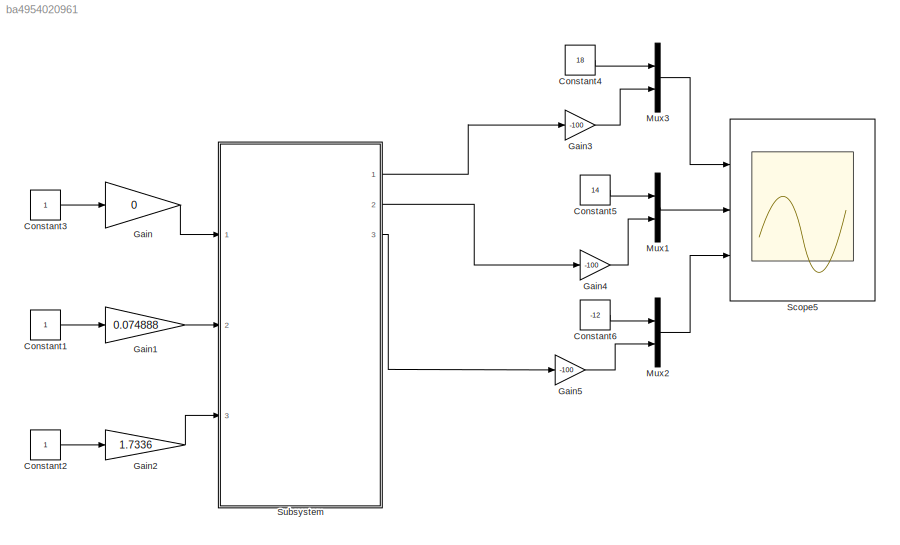
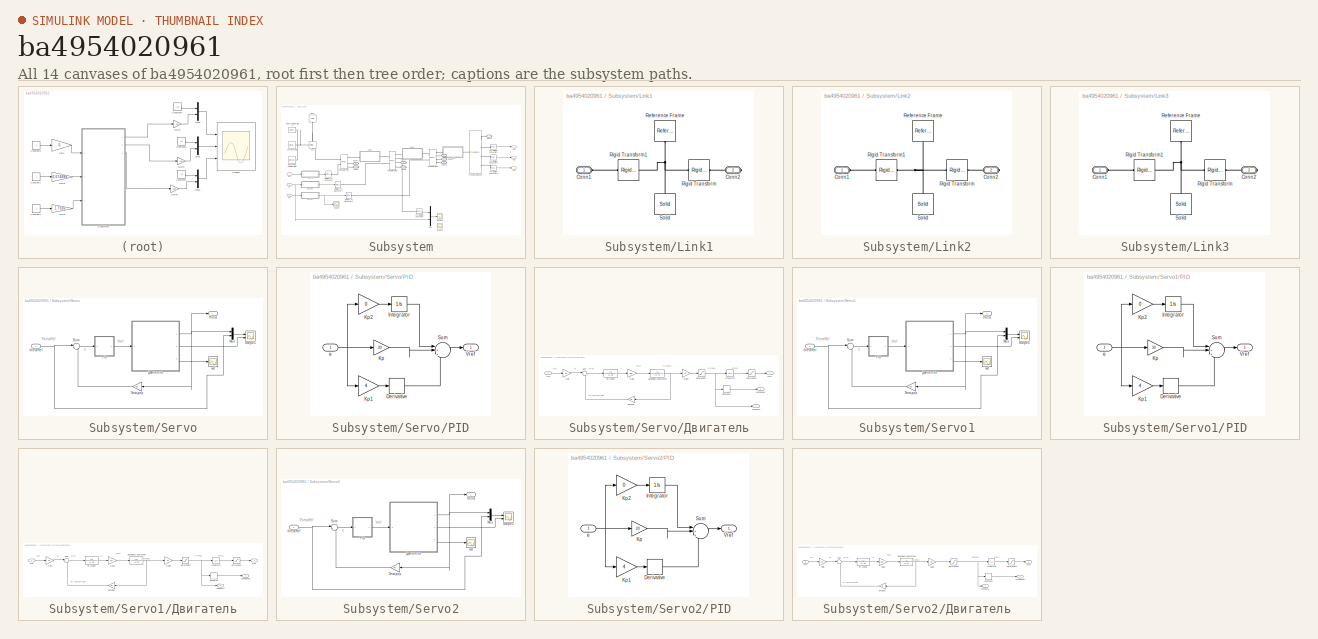
[diagram: thumbnail index - all 14 canvases of the model, root first then tree order]
MODEL slx_ba4954020961
KIND model
CONFIG AbsTol = auto
CONFIG FixedStep = 0.0006
CONFIG MaxStep = auto
CONFIG MinStep = auto
CONFIG RelTol = 1e-3
CONFIG SampleTimeConstraint = Unconstrained
CONFIG Solver = ode14x
CONFIG SolverMode = Auto
CONFIG SolverName = ode14x
CONFIG StartTime = 0.0
CONFIG StopTime = inf
BLOCK [Constant] Constant1
BLOCK [Constant] Constant2
BLOCK [Constant] Constant3
BLOCK [Constant] Constant4
  Value = 18
BLOCK [Constant] Constant5
  Value = 14
BLOCK [Constant] Constant6
  Value = -12
BLOCK [Gain] Gain
  Gain = 0
  OutDataTypeStr = Inherit: Inherit via internal rule
  ParamDataTypeStr = Inherit: Inherit via internal rule
  SaturateOnIntegerOverflow = off
BLOCK [Gain] Gain1
  Gain = 0.074888
  OutDataTypeStr = Inherit: Inherit via internal rule
  ParamDataTypeStr = Inherit: Inherit via internal rule
  SaturateOnIntegerOverflow = off
BLOCK [Gain] Gain2
  Gain = 1.7336
  OutDataTypeStr = Inherit: Inherit via internal rule
  ParamDataTypeStr = Inherit: Inherit via internal rule
  SaturateOnIntegerOverflow = off
BLOCK [Gain] Gain3
  Gain = -100
  OutDataTypeStr = Inherit: Inherit via internal rule
  ParamDataTypeStr = Inherit: Inherit via internal rule
  SaturateOnIntegerOverflow = off
BLOCK [Gain] Gain4
  Gain = -100
  OutDataTypeStr = Inherit: Inherit via internal rule
  ParamDataTypeStr = Inherit: Inherit via internal rule
  SaturateOnIntegerOverflow = off
BLOCK [Gain] Gain5
  Gain = -100
  OutDataTypeStr = Inherit: Inherit via internal rule
  ParamDataTypeStr = Inherit: Inherit via internal rule
  SaturateOnIntegerOverflow = off
BLOCK [Mux] Mux1
  DisplayOption = bar
  Inputs = 2
  Ports = [2, 1]
BLOCK [Mux] Mux2
  DisplayOption = bar
  Inputs = 2
  Ports = [2, 1]
BLOCK [Mux] Mux3
  DisplayOption = bar
  Inputs = 2
  Ports = [2, 1]
BLOCK [Scope] Scope5
  Floating = off
  LimitDataPoints = off
  NumInputPorts = 3
  Ports = [3]
  SaveName = ScopeData4
  YMax = 28~25~12.5
  YMin = 14~14~-12.5
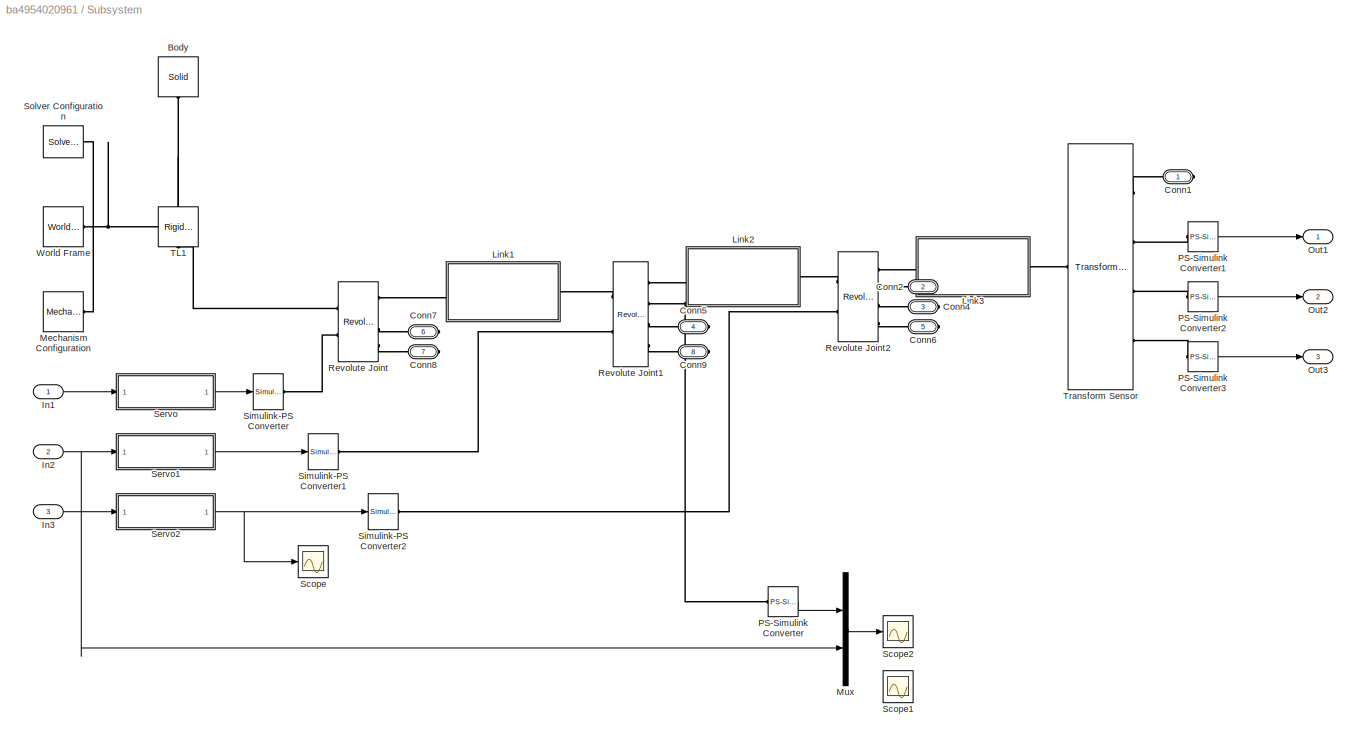
BLOCK [SubSystem] Subsystem
  Ports = [3, 3, 0, 0, 0, 0, 8]
  RequestExecContextInheritance = off
BLOCK [Reference] Subsystem/Body  REF=sm_lib/Body Elements/Solid
  BlockFunction = simmechanics.library.body_elements.solid
  BrickDimensionUnits = cm
  BrickDimensions = [18.5 12.5 1]
  CenterOfMass = [0 0 0]
  CenterOfMassUnits = m
  ClassName = Solid
  CylinderLength = 1
  CylinderLengthUnits = m
  CylinderRadius = 1
  CylinderRadiusUnits = m
  Density = 5000
  DensityBased = off
  DensityUnits = kg/(m^3)
  EllipsoidRadii = [1 1 1]
  EllipsoidRadiiUnits = m
  ExtGeomFileName = <path>
  ExtGeomFileType = STEP
  ExtGeomFileUnits = m
  ExtrusionCrossSection = [bL/2 bWs/2; 0 bWb/2; -bL/2 bWs/2; -bL/2 -bWs/2; 0 -bWb/2; bL/2 -bWs/2]
  ExtrusionCrossSectionUnits = cm
  ExtrusionLength = bH
  ExtrusionLengthUnits = cm
  GeometryShape = GeneralExtrusion
  GraphicAmbientColor = [0.15 0.15 0.15 1.0]
  GraphicDiffuseColor = [0.0 0.4 0.0]
  GraphicEmissiveColor = [0.0 0.0 0.0 1.0]
  GraphicOpacity = 1.0
  GraphicShininess = 75
  GraphicSpecularColor = [0.5 0.5 0.5 1.0]
  GraphicType = FromGeometry
  GraphicVisPropType = SimpleVisualProperties
  InertiaType = CalculateFromGeometry
  LogSimulationData = off
  MarkerShape = Sphere
  MarkerSize = 10
  MarkerSizeUnits = m
  Mass = 0.835
  MassUnits = kg
  MomentsOfInertia = [1 1 1]
  MomentsOfInertiaUnits = kg*m^2
  PolygonNumSides = 3
  PolygonOuterRadius = 1
  PolygonOuterRadiusUnits = m
  Ports = [0, 0, 0, 0, 0, 0, 1]
  ProductsOfInertia = [0 0 0]
  ProductsOfInertiaUnits = kg*m^2
  RectangleSize = [1 1]
  RectangleSizeUnits = m
  RevolutionAngle = 180
  RevolutionAngleUnits = deg
  RevolutionCrossSection = [1 1; 1 -1; 2 -1; 2 1]
  RevolutionCrossSectionUnits = m
  RevolutionExtent = Full
  SourceBlock = sm_lib/Body Elements/Solid
  SourceType = Solid
  SphereRadius = 1
  SphereRadiusUnits = m
BLOCK [PMIOPort] Subsystem/Conn1
  Port = 1
  Side = Right
BLOCK [PMIOPort] Subsystem/Conn2
  Port = 2
  Side = Right
BLOCK [PMIOPort] Subsystem/Conn4
  Port = 3
  Side = Right
BLOCK [PMIOPort] Subsystem/Conn5
  Port = 4
  Side = Right
BLOCK [PMIOPort] Subsystem/Conn6
  Port = 5
  Side = Right
BLOCK [PMIOPort] Subsystem/Conn7
  Port = 6
  Side = Right
BLOCK [PMIOPort] Subsystem/Conn8
  Port = 7
  Side = Right
BLOCK [PMIOPort] Subsystem/Conn9
  Port = 8
  Side = Right
BLOCK [Inport] Subsystem/In1
  IconDisplay = Port number
BLOCK [Inport] Subsystem/In2
  IconDisplay = Port number
  Port = 2
BLOCK [Inport] Subsystem/In3
  IconDisplay = Port number
  Port = 3
BLOCK [SubSystem] Subsystem/Link1
  Ports = [0, 0, 0, 0, 0, 1, 1]
  RequestExecContextInheritance = off
BLOCK [PMIOPort] Subsystem/Link1/Conn1
  Port = 1
  Side = Left
BLOCK [PMIOPort] Subsystem/Link1/Conn2
  Port = 2
  Side = Right
BLOCK [Reference] Subsystem/Link1/Reference Frame  REF=sm_lib/Frames and
Transforms/Reference
Frame
  BlockFunction = simmechanics.library.frames_transforms.reference_frame
  ClassName = ReferenceFrame
  LogSimulationData = off
  Ports = [0, 0, 0, 0, 0, 0, 1]
  SourceBlock = sm_lib/Frames and\nTransforms/Reference\nFrame
  SourceType = Reference\nFrame
BLOCK [Reference] Subsystem/Link1/Rigid Transform  REF=sm_lib/Frames and
Transforms/Rigid
Transform
  BaseAlignAxisA = +Y
  BaseAlignAxisB = +Z
  BlockFunction = simmechanics.library.frames_transforms.rigid_transform
  ClassName = RigidTransform
  FollAlignAxisA = +X
  FollAlignAxisB = +Y
  LogSimulationData = off
  Ports = [0, 0, 0, 0, 0, 1, 1]
  RotationAngle = Xangle
  RotationAngleUnits = deg
  RotationArbitraryAxis = [0 0 1]
  RotationMatrix = [1 0 0; 0 1 0; 0 0 1]
  RotationMethod = StandardAxis
  RotationStandardAxis = +X
  SourceBlock = sm_lib/Frames and\nTransforms/Rigid\nTransform
  SourceType = Rigid\nTransform
  TranslationCartesianOffset = [L/2 0 d2]
  TranslationLengthUnit = cm
  TranslationMethod = Cartesian
  TranslationROffset = 0
  TranslationROffsetUnits = m
  TranslationStandardAxis = +X
  TranslationStandardOffset = L/2
  TranslationThetaOffset = 0
  TranslationThetaOffsetUnits = deg
  TranslationZOffset = 0
  TranslationZOffsetUnits = m
BLOCK [Reference] Subsystem/Link1/Rigid Transform1  REF=sm_lib/Frames and
Transforms/Rigid
Transform
  BaseAlignAxisA = +Y
  BaseAlignAxisB = +Z
  BlockFunction = simmechanics.library.frames_transforms.rigid_transform
  ClassName = RigidTransform
  FollAlignAxisA = +X
  FollAlignAxisB = +Y
  LogSimulationData = off
  Ports = [0, 0, 0, 0, 0, 1, 1]
  RotationAngle = 0.0
  RotationAngleUnits = deg
  RotationArbitraryAxis = [0 0 1]
  RotationMatrix = [1 0 0; 0 1 0; 0 0 1]
  RotationMethod = None
  RotationStandardAxis = +Z
  SourceBlock = sm_lib/Frames and\nTransforms/Rigid\nTransform
  SourceType = Rigid\nTransform
  TranslationCartesianOffset = [0 0 0]
  TranslationLengthUnit = cm
  TranslationMethod = StandardAxis
  TranslationROffset = 0
  TranslationROffsetUnits = m
  TranslationStandardAxis = -X
  TranslationStandardOffset = L/2
  TranslationThetaOffset = 0
  TranslationThetaOffsetUnits = deg
  TranslationZOffset = 0
  TranslationZOffsetUnits = m
BLOCK [Reference] Subsystem/Link1/Solid  REF=sm_lib/Body Elements/Solid
  BlockFunction = simmechanics.library.body_elements.solid
  BrickDimensionUnits = cm
  BrickDimensions = [L 1 1]
  CenterOfMass = [0 0 0]
  CenterOfMassUnits = m
  ClassName = Solid
  CylinderLength = 1
  CylinderLengthUnits = m
  CylinderRadius = 1
  CylinderRadiusUnits = m
  Density = 1
  DensityBased = off
  DensityUnits = kg/(m^3)
  EllipsoidRadii = [1 1 1]
  EllipsoidRadiiUnits = m
  ExtGeomFileName = <path>
  ExtGeomFileType = STEP
  ExtGeomFileUnits = m
  ExtrusionCrossSection = [1 1; -1 1; -1 -1; 1 -1]
  ExtrusionCrossSectionUnits = m
  ExtrusionLength = 1
  ExtrusionLengthUnits = m
  GeometryShape = Brick
  GraphicAmbientColor = [0.15 0.15 0.15 1.0]
  GraphicDiffuseColor = rgb
  GraphicEmissiveColor = [0.0 0.0 0.0 1.0]
  GraphicOpacity = 1.0
  GraphicShininess = 75
  GraphicSpecularColor = [0.5 0.5 0.5 1.0]
  GraphicType = FromGeometry
  GraphicVisPropType = SimpleVisualProperties
  InertiaType = PointMass
  LogSimulationData = off
  MarkerShape = Sphere
  MarkerSize = 10
  MarkerSizeUnits = m
  Mass = m
  MassUnits = kg
  MomentsOfInertia = [1 1 1]
  MomentsOfInertiaUnits = kg*m^2
  PolygonNumSides = 3
  PolygonOuterRadius = 1
  PolygonOuterRadiusUnits = m
  Ports = [0, 0, 0, 0, 0, 0, 1]
  ProductsOfInertia = [0 0 0]
  ProductsOfInertiaUnits = kg*m^2
  RectangleSize = [1 1]
  RectangleSizeUnits = m
  RevolutionAngle = 180
  RevolutionAngleUnits = deg
  RevolutionCrossSection = [1 1; 1 -1; 2 -1; 2 1]
  RevolutionCrossSectionUnits = m
  RevolutionExtent = Full
  SourceBlock = sm_lib/Body Elements/Solid
  SourceType = Solid
  SphereRadius = 1
  SphereRadiusUnits = m
BLOCK [SubSystem] Subsystem/Link2
  Ports = [0, 0, 0, 0, 0, 1, 1]
  RequestExecContextInheritance = off
BLOCK [PMIOPort] Subsystem/Link2/Conn1
  Port = 1
  Side = Left
BLOCK [PMIOPort] Subsystem/Link2/Conn2
  Port = 2
  Side = Right
BLOCK [Reference] Subsystem/Link2/Reference Frame  REF=sm_lib/Frames and
Transforms/Reference
Frame
  BlockFunction = simmechanics.library.frames_transforms.reference_frame
  ClassName = ReferenceFrame
  LogSimulationData = off
  Ports = [0, 0, 0, 0, 0, 0, 1]
  SourceBlock = sm_lib/Frames and\nTransforms/Reference\nFrame
  SourceType = Reference\nFrame
BLOCK [Reference] Subsystem/Link2/Rigid Transform  REF=sm_lib/Frames and
Transforms/Rigid
Transform
  BaseAlignAxisA = +Y
  BaseAlignAxisB = +Z
  BlockFunction = simmechanics.library.frames_transforms.rigid_transform
  ClassName = RigidTransform
  FollAlignAxisA = +X
  FollAlignAxisB = +Y
  LogSimulationData = off
  Ports = [0, 0, 0, 0, 0, 1, 1]
  RotationAngle = Xangle
  RotationAngleUnits = deg
  RotationArbitraryAxis = [0 0 1]
  RotationMatrix = [1 0 0; 0 1 0; 0 0 1]
  RotationMethod = StandardAxis
  RotationStandardAxis = +X
  SourceBlock = sm_lib/Frames and\nTransforms/Rigid\nTransform
  SourceType = Rigid\nTransform
  TranslationCartesianOffset = [0 0 0]
  TranslationLengthUnit = cm
  TranslationMethod = StandardAxis
  TranslationROffset = 0
  TranslationROffsetUnits = m
  TranslationStandardAxis = +X
  TranslationStandardOffset = L/2
  TranslationThetaOffset = 0
  TranslationThetaOffsetUnits = deg
  TranslationZOffset = 0
  TranslationZOffsetUnits = m
BLOCK [Reference] Subsystem/Link2/Rigid Transform1  REF=sm_lib/Frames and
Transforms/Rigid
Transform
  BaseAlignAxisA = +Y
  BaseAlignAxisB = +Z
  BlockFunction = simmechanics.library.frames_transforms.rigid_transform
  ClassName = RigidTransform
  FollAlignAxisA = +X
  FollAlignAxisB = +Y
  LogSimulationData = off
  Ports = [0, 0, 0, 0, 0, 1, 1]
  RotationAngle = 0.0
  RotationAngleUnits = deg
  RotationArbitraryAxis = [0 0 1]
  RotationMatrix = [1 0 0; 0 1 0; 0 0 1]
  RotationMethod = None
  RotationStandardAxis = +Z
  SourceBlock = sm_lib/Frames and\nTransforms/Rigid\nTransform
  SourceType = Rigid\nTransform
  TranslationCartesianOffset = [0 0 0]
  TranslationLengthUnit = cm
  TranslationMethod = StandardAxis
  TranslationROffset = 0
  TranslationROffsetUnits = m
  TranslationStandardAxis = -X
  TranslationStandardOffset = L/2
  TranslationThetaOffset = 0
  TranslationThetaOffsetUnits = deg
  TranslationZOffset = 0
  TranslationZOffsetUnits = m
BLOCK [Reference] Subsystem/Link2/Solid  REF=sm_lib/Body Elements/Solid
  BlockFunction = simmechanics.library.body_elements.solid
  BrickDimensionUnits = cm
  BrickDimensions = [L W H]
  CenterOfMass = [0 0 0]
  CenterOfMassUnits = m
  ClassName = Solid
  CylinderLength = 1
  CylinderLengthUnits = m
  CylinderRadius = 1
  CylinderRadiusUnits = m
  Density = 1
  DensityBased = off
  DensityUnits = kg/(m^3)
  EllipsoidRadii = [1 1 1]
  EllipsoidRadiiUnits = m
  ExtGeomFileName = <path>
  ExtGeomFileType = STEP
  ExtGeomFileUnits = m
  ExtrusionCrossSection = [1 1; -1 1; -1 -1; 1 -1]
  ExtrusionCrossSectionUnits = m
  ExtrusionLength = 1
  ExtrusionLengthUnits = m
  GeometryShape = Brick
  GraphicAmbientColor = [0.15 0.15 0.15 1.0]
  GraphicDiffuseColor = rgb
  GraphicEmissiveColor = [0.0 0.0 0.0 1.0]
  GraphicOpacity = 1.0
  GraphicShininess = 75
  GraphicSpecularColor = [0.5 0.5 0.5 1.0]
  GraphicType = FromGeometry
  GraphicVisPropType = SimpleVisualProperties
  InertiaType = PointMass
  LogSimulationData = off
  MarkerShape = Sphere
  MarkerSize = 10
  MarkerSizeUnits = m
  Mass = m
  MassUnits = kg
  MomentsOfInertia = [1 1 1]
  MomentsOfInertiaUnits = kg*m^2
  PolygonNumSides = 3
  PolygonOuterRadius = 1
  PolygonOuterRadiusUnits = m
  Ports = [0, 0, 0, 0, 0, 0, 1]
  ProductsOfInertia = [0 0 0]
  ProductsOfInertiaUnits = kg*m^2
  RectangleSize = [1 1]
  RectangleSizeUnits = m
  RevolutionAngle = 180
  RevolutionAngleUnits = deg
  RevolutionCrossSection = [1 1; 1 -1; 2 -1; 2 1]
  RevolutionCrossSectionUnits = m
  RevolutionExtent = Full
  SourceBlock = sm_lib/Body Elements/Solid
  SourceType = Solid
  SphereRadius = 1
  SphereRadiusUnits = m
BLOCK [SubSystem] Subsystem/Link3
  Ports = [0, 0, 0, 0, 0, 1, 1]
  RequestExecContextInheritance = off
BLOCK [PMIOPort] Subsystem/Link3/Conn1
  Port = 1
  Side = Left
BLOCK [PMIOPort] Subsystem/Link3/Conn2
  Port = 2
  Side = Right
BLOCK [Reference] Subsystem/Link3/Reference Frame  REF=sm_lib/Frames and
Transforms/Reference
Frame
  BlockFunction = simmechanics.library.frames_transforms.reference_frame
  ClassName = ReferenceFrame
  LogSimulationData = off
  Ports = [0, 0, 0, 0, 0, 0, 1]
  SourceBlock = sm_lib/Frames and\nTransforms/Reference\nFrame
  SourceType = Reference\nFrame
BLOCK [Reference] Subsystem/Link3/Rigid Transform  REF=sm_lib/Frames and
Transforms/Rigid
Transform
  BaseAlignAxisA = +Y
  BaseAlignAxisB = +Z
  BlockFunction = simmechanics.library.frames_transforms.rigid_transform
  ClassName = RigidTransform
  FollAlignAxisA = +X
  FollAlignAxisB = +Y
  LogSimulationData = off
  Ports = [0, 0, 0, 0, 0, 1, 1]
  RotationAngle = Xangle
  RotationAngleUnits = deg
  RotationArbitraryAxis = [0 0 1]
  RotationMatrix = [1 0 0; 0 1 0; 0 0 1]
  RotationMethod = None
  RotationStandardAxis = +X
  SourceBlock = sm_lib/Frames and\nTransforms/Rigid\nTransform
  SourceType = Rigid\nTransform
  TranslationCartesianOffset = [0 0 0]
  TranslationLengthUnit = cm
  TranslationMethod = StandardAxis
  TranslationROffset = 0
  TranslationROffsetUnits = m
  TranslationStandardAxis = +X
  TranslationStandardOffset = L/2
  TranslationThetaOffset = 0
  TranslationThetaOffsetUnits = deg
  TranslationZOffset = 0
  TranslationZOffsetUnits = m
BLOCK [Reference] Subsystem/Link3/Rigid Transform1  REF=sm_lib/Frames and
Transforms/Rigid
Transform
  BaseAlignAxisA = +Y
  BaseAlignAxisB = +Z
  BlockFunction = simmechanics.library.frames_transforms.rigid_transform
  ClassName = RigidTransform
  FollAlignAxisA = +X
  FollAlignAxisB = +Y
  LogSimulationData = off
  Ports = [0, 0, 0, 0, 0, 1, 1]
  RotationAngle = 0.0
  RotationAngleUnits = deg
  RotationArbitraryAxis = [0 0 1]
  RotationMatrix = [1 0 0; 0 1 0; 0 0 1]
  RotationMethod = None
  RotationStandardAxis = +Z
  SourceBlock = sm_lib/Frames and\nTransforms/Rigid\nTransform
  SourceType = Rigid\nTransform
  TranslationCartesianOffset = [0 0 0]
  TranslationLengthUnit = cm
  TranslationMethod = StandardAxis
  TranslationROffset = 0
  TranslationROffsetUnits = m
  TranslationStandardAxis = -X
  TranslationStandardOffset = L/2
  TranslationThetaOffset = 0
  TranslationThetaOffsetUnits = deg
  TranslationZOffset = 0
  TranslationZOffsetUnits = m
BLOCK [Reference] Subsystem/Link3/Solid  REF=sm_lib/Body Elements/Solid
  BlockFunction = simmechanics.library.body_elements.solid
  BrickDimensionUnits = cm
  BrickDimensions = [L W H]
  CenterOfMass = [0 0 0]
  CenterOfMassUnits = m
  ClassName = Solid
  CylinderLength = 1
  CylinderLengthUnits = m
  CylinderRadius = 1
  CylinderRadiusUnits = m
  Density = 1
  DensityBased = off
  DensityUnits = kg/(m^3)
  EllipsoidRadii = [1 1 1]
  EllipsoidRadiiUnits = m
  ExtGeomFileName = <path>
  ExtGeomFileType = STEP
  ExtGeomFileUnits = m
  ExtrusionCrossSection = [1 1; -1 1; -1 -1; 1 -1]
  ExtrusionCrossSectionUnits = m
  ExtrusionLength = 1
  ExtrusionLengthUnits = m
  GeometryShape = Brick
  GraphicAmbientColor = [0.15 0.15 0.15 1.0]
  GraphicDiffuseColor = rgb
  GraphicEmissiveColor = [0.0 0.0 0.0 1.0]
  GraphicOpacity = 1.0
  GraphicShininess = 75
  GraphicSpecularColor = [0.5 0.5 0.5 1.0]
  GraphicType = FromGeometry
  GraphicVisPropType = SimpleVisualProperties
  InertiaType = PointMass
  LogSimulationData = off
  MarkerShape = Sphere
  MarkerSize = 10
  MarkerSizeUnits = m
  Mass = m
  MassUnits = kg
  MomentsOfInertia = [1 1 1]
  MomentsOfInertiaUnits = kg*m^2
  PolygonNumSides = 3
  PolygonOuterRadius = 1
  PolygonOuterRadiusUnits = m
  Ports = [0, 0, 0, 0, 0, 0, 1]
  ProductsOfInertia = [0 0 0]
  ProductsOfInertiaUnits = kg*m^2
  RectangleSize = [1 1]
  RectangleSizeUnits = m
  RevolutionAngle = 180
  RevolutionAngleUnits = deg
  RevolutionCrossSection = [1 1; 1 -1; 2 -1; 2 1]
  RevolutionCrossSectionUnits = m
  RevolutionExtent = Full
  SourceBlock = sm_lib/Body Elements/Solid
  SourceType = Solid
  SphereRadius = 1
  SphereRadiusUnits = m
BLOCK [Reference] Subsystem/Mechanism Configuration  REF=sm_lib/Utilities/Mechanism
Configuration
  BlockFunction = simmechanics.library.utilities.mechanism_configuration
  ClassName = MechanismConfiguration
  GravityUnits = m/s^2
  GravityVector = [0 0 -9.80665]
  LinearizationDelta = 0.001
  LogSimulationData = off
  Ports = [0, 0, 0, 0, 0, 0, 1]
  SourceBlock = sm_lib/Utilities/Mechanism\nConfiguration
  SourceType = Mechanism\nConfiguration
  UniformGravity = Constant
BLOCK [Mux] Subsystem/Mux
  DisplayOption = bar
  Inputs = 2
  Ports = [2, 1]
BLOCK [Outport] Subsystem/Out1
  IconDisplay = Port number
BLOCK [Outport] Subsystem/Out2
  IconDisplay = Port number
  Port = 2
BLOCK [Outport] Subsystem/Out3
  IconDisplay = Port number
  Port = 3
BLOCK [Reference] Subsystem/PS-Simulink Converter  REF=nesl_utility/PS-Simulink
Converter
  AffineConversion = off
  Frequencies = []
  LeftPortType = input
  PhysicalDomain = network_engine_domain
  Ports = [0, 1, 0, 0, 0, 1]
  PseudoPeriodic = off
  RightPortType = output
  SourceBlock = nesl_utility/PS-Simulink\nConverter
  SourceType = PS-Simulink\nConverter
  SubClassName = ps_output
  Unit = 1
BLOCK [Reference] Subsystem/PS-Simulink Converter1  REF=nesl_utility/PS-Simulink
Converter
  AffineConversion = off
  Frequencies = []
  LeftPortType = input
  PhysicalDomain = network_engine_domain
  Ports = [0, 1, 0, 0, 0, 1]
  PseudoPeriodic = off
  RightPortType = output
  SourceBlock = nesl_utility/PS-Simulink\nConverter
  SourceType = PS-Simulink\nConverter
  SubClassName = ps_output
  Unit = 1
BLOCK [Reference] Subsystem/PS-Simulink Converter2  REF=nesl_utility/PS-Simulink
Converter
  AffineConversion = off
  Frequencies = []
  LeftPortType = input
  PhysicalDomain = network_engine_domain
  Ports = [0, 1, 0, 0, 0, 1]
  PseudoPeriodic = off
  RightPortType = output
  SourceBlock = nesl_utility/PS-Simulink\nConverter
  SourceType = PS-Simulink\nConverter
  SubClassName = ps_output
  Unit = 1
BLOCK [Reference] Subsystem/PS-Simulink Converter3  REF=nesl_utility/PS-Simulink
Converter
  AffineConversion = off
  Frequencies = []
  LeftPortType = input
  PhysicalDomain = network_engine_domain
  Ports = [0, 1, 0, 0, 0, 1]
  PseudoPeriodic = off
  RightPortType = output
  SourceBlock = nesl_utility/PS-Simulink\nConverter
  SourceType = PS-Simulink\nConverter
  SubClassName = ps_output
  Unit = 1
BLOCK [Reference] Subsystem/Revolute Joint  REF=sm_lib/Joints/Revolute Joint
  BlockFunction = simmechanics.library.joints.revolute_joint
  ClassName = RevoluteJoint
  CompositeWrenchDir = FollowerOnBase
  CompositeWrenchFrame = BaseFrame
  DampingCoefficient = 0
  DampingCoefficientUnits = N*m/(deg/s)
  EquilibriumPosition = 0
  EquilibriumPositionUnits = deg
  LogSimulationData = off
  MotionActuationMode = InputMotion
  Ports = [0, 0, 0, 0, 0, 2, 4]
  PositionTargetPriority = High
  PositionTargetSpecify = off
  PositionTargetValue = 0
  PositionTargetValueUnits = deg
  SenseAcceleration = off
  SenseConstraintForce = off
  SenseConstraintForceX = off
  SenseConstraintForceY = off
  SenseConstraintForceZ = off
  SenseConstraintTorque = off
  SenseConstraintTorqueX = off
  SenseConstraintTorqueY = off
  SenseConstraintTorqueZ = off
  SensePosition = on
  SenseTorqueForce = on
  SenseTotalForce = off
  SenseTotalForceX = off
  SenseTotalForceY = off
  SenseTotalForceZ = off
  SenseTotalTorque = on
  SenseTotalTorqueX = off
  SenseTotalTorqueY = off
  SenseTotalTorqueZ = off
  SenseVelocity = off
  SourceBlock = sm_lib/Joints/Revolute Joint
  SourceType = Revolute Joint
  SpringStiffness = 0
  SpringStiffnessUnits = N*m/deg
  TorqueActuationMode = ComputedTorque
  VelocityTargetPriority = High
  VelocityTargetSpecify = off
  VelocityTargetValue = 0
  VelocityTargetValueUnits = deg/s
BLOCK [Reference] Subsystem/Revolute Joint1  REF=sm_lib/Joints/Revolute Joint
  BlockFunction = simmechanics.library.joints.revolute_joint
  ClassName = RevoluteJoint
  CompositeWrenchDir = FollowerOnBase
  CompositeWrenchFrame = BaseFrame
  DampingCoefficient = 0
  DampingCoefficientUnits = N*m/(deg/s)
  EquilibriumPosition = 0
  EquilibriumPositionUnits = deg
  LogSimulationData = off
  MotionActuationMode = InputMotion
  Ports = [0, 0, 0, 0, 0, 2, 4]
  PositionTargetPriority = High
  PositionTargetSpecify = off
  PositionTargetValue = 0
  PositionTargetValueUnits = deg
  SenseAcceleration = off
  SenseConstraintForce = off
  SenseConstraintForceX = off
  SenseConstraintForceY = off
  SenseConstraintForceZ = off
  SenseConstraintTorque = off
  SenseConstraintTorqueX = off
  SenseConstraintTorqueY = off
  SenseConstraintTorqueZ = off
  SensePosition = on
  SenseTorqueForce = on
  SenseTotalForce = off
  SenseTotalForceX = off
  SenseTotalForceY = off
  SenseTotalForceZ = off
  SenseTotalTorque = on
  SenseTotalTorqueX = off
  SenseTotalTorqueY = off
  SenseTotalTorqueZ = off
  SenseVelocity = off
  SourceBlock = sm_lib/Joints/Revolute Joint
  SourceType = Revolute Joint
  SpringStiffness = 0
  SpringStiffnessUnits = N*m/deg
  TorqueActuationMode = ComputedTorque
  VelocityTargetPriority = High
  VelocityTargetSpecify = off
  VelocityTargetValue = 0
  VelocityTargetValueUnits = deg/s
BLOCK [Reference] Subsystem/Revolute Joint2  REF=sm_lib/Joints/Revolute Joint
  BlockFunction = simmechanics.library.joints.revolute_joint
  ClassName = RevoluteJoint
  CompositeWrenchDir = FollowerOnBase
  CompositeWrenchFrame = BaseFrame
  DampingCoefficient = 0
  DampingCoefficientUnits = N*m/(deg/s)
  EquilibriumPosition = 0
  EquilibriumPositionUnits = deg
  LogSimulationData = off
  MotionActuationMode = InputMotion
  Ports = [0, 0, 0, 0, 0, 2, 4]
  PositionTargetPriority = High
  PositionTargetSpecify = off
  PositionTargetValue = 0
  PositionTargetValueUnits = deg
  SenseAcceleration = off
  SenseConstraintForce = off
  SenseConstraintForceX = off
  SenseConstraintForceY = off
  SenseConstraintForceZ = off
  SenseConstraintTorque = off
  SenseConstraintTorqueX = off
  SenseConstraintTorqueY = off
  SenseConstraintTorqueZ = off
  SensePosition = on
  SenseTorqueForce = on
  SenseTotalForce = off
  SenseTotalForceX = off
  SenseTotalForceY = off
  SenseTotalForceZ = off
  SenseTotalTorque = on
  SenseTotalTorqueX = off
  SenseTotalTorqueY = off
  SenseTotalTorqueZ = off
  SenseVelocity = off
  SourceBlock = sm_lib/Joints/Revolute Joint
  SourceType = Revolute Joint
  SpringStiffness = 0
  SpringStiffnessUnits = N*m/deg
  TorqueActuationMode = ComputedTorque
  VelocityTargetPriority = High
  VelocityTargetSpecify = off
  VelocityTargetValue = 0
  VelocityTargetValueUnits = deg/s
BLOCK [Scope] Subsystem/Scope
  Floating = off
  NumInputPorts = 1
  Ports = [1]
BLOCK [Scope] Subsystem/Scope1
  Floating = off
  LimitDataPoints = off
  NumInputPorts = 1
  Ports = [1]
  SaveName = ScopeData1
  ZoomMode = xonly
BLOCK [Scope] Subsystem/Scope2
  Floating = off
  LimitDataPoints = off
  NumInputPorts = 1
  Ports = [1]
  SaveName = ScopeData2
  YMax = 0.3
  YMin = 0.025
BLOCK [SubSystem] Subsystem/Servo
  Ports = [1, 1]
  RequestExecContextInheritance = off
BLOCK [Mux] Subsystem/Servo/Mux
  DisplayOption = bar
  Inputs = 2
  Ports = [2, 1]
BLOCK [SubSystem] Subsystem/Servo/PID
  Ports = [1, 1]
  RequestExecContextInheritance = off
BLOCK [Derivative] Subsystem/Servo/PID/Derivative
BLOCK [Integrator] Subsystem/Servo/PID/Integrator
  Ports = [1, 1]
BLOCK [Gain] Subsystem/Servo/PID/Kp
  Gain = 30
  OutDataTypeStr = Inherit: Inherit via internal rule
  ParamDataTypeStr = Inherit: Inherit via internal rule
  SaturateOnIntegerOverflow = off
BLOCK [Gain] Subsystem/Servo/PID/Kp1
  Gain = 4
  OutDataTypeStr = Inherit: Inherit via internal rule
  ParamDataTypeStr = Inherit: Inherit via internal rule
  SaturateOnIntegerOverflow = off
BLOCK [Gain] Subsystem/Servo/PID/Kp2
  Gain = 0
  OutDataTypeStr = Inherit: Inherit via internal rule
  ParamDataTypeStr = Inherit: Inherit via internal rule
  SaturateOnIntegerOverflow = off
BLOCK [Sum] Subsystem/Servo/PID/Sum
  IconShape = round
  InputSameDT = off
  Inputs = |+++
  OutDataTypeStr = Inherit: Inherit via internal rule
  Ports = [3, 1]
  SaturateOnIntegerOverflow = off
BLOCK [Outport] Subsystem/Servo/PID/Vref
  IconDisplay = Port number
BLOCK [Inport] Subsystem/Servo/PID/e
  IconDisplay = Port number
BLOCK [Scope] Subsystem/Servo/Scope5
  Floating = off
  LimitDataPoints = off
  NumInputPorts = 2
  Ports = [2]
  SaveName = ScopeData45
  YMax = 1.1~3.5
  YMin = 5.55112e-17~-3.5
BLOCK [Sum] Subsystem/Servo/Sum
  IconShape = round
  InputSameDT = off
  Inputs = |+-
  OutDataTypeStr = Inherit: Inherit via internal rule
  Ports = [2, 1]
  SaturateOnIntegerOverflow = off
BLOCK [Outport] Subsystem/Servo/theta
  IconDisplay = Port number
BLOCK [Inport] Subsystem/Servo/thetaRef
  IconDisplay = Port number
BLOCK [Scope] Subsystem/Servo/wd
  DataFormat = StructureWithTime
  Floating = off
  LimitDataPoints = off
  NumInputPorts = 1
  Ports = [1]
  SampleTime = 0
  SaveName = ScopeData3
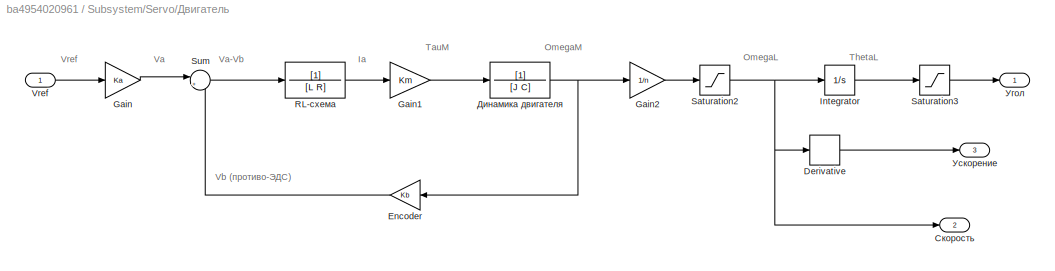
BLOCK [SubSystem] Subsystem/Servo/Двигатель
  Ports = [1, 3]
  RequestExecContextInheritance = off
BLOCK [Derivative] Subsystem/Servo/Двигатель/Derivative
BLOCK [Gain] Subsystem/Servo/Двигатель/Encoder
  Gain = Kb
  OutDataTypeStr = Inherit: Inherit via internal rule
  ParamDataTypeStr = Inherit: Inherit via internal rule
  SaturateOnIntegerOverflow = off
BLOCK [Gain] Subsystem/Servo/Двигатель/Gain
  Gain = Ka
  OutDataTypeStr = Inherit: Inherit via internal rule
  ParamDataTypeStr = Inherit: Inherit via internal rule
  SaturateOnIntegerOverflow = off
BLOCK [Gain] Subsystem/Servo/Двигатель/Gain1
  Gain = Km
  OutDataTypeStr = Inherit: Inherit via internal rule
  ParamDataTypeStr = Inherit: Inherit via internal rule
  SaturateOnIntegerOverflow = off
BLOCK [Gain] Subsystem/Servo/Двигатель/Gain2
  Gain = 1/n
  OutDataTypeStr = Inherit: Inherit via internal rule
  ParamDataTypeStr = Inherit: Inherit via internal rule
  SaturateOnIntegerOverflow = off
BLOCK [Integrator] Subsystem/Servo/Двигатель/Integrator
  Ports = [1, 1]
BLOCK [TransferFcn] Subsystem/Servo/Двигатель/RL-схема
  Denominator = [L R]
BLOCK [Saturate] Subsystem/Servo/Двигатель/Saturation2
  InputPortMap = u0
  LowerLimit = -190*pi/180
  OutMax = [190*pi/180]
  OutMin = [-190*pi/180]
  Ports = [1, 1]
  UpperLimit = 190*pi/180
BLOCK [Saturate] Subsystem/Servo/Двигатель/Saturation3
  InputPortMap = u0
  LowerLimit = -60*pi/180
  OutMax = [150*pi/180]
  OutMin = [-150*pi/180]
  Ports = [1, 1]
  UpperLimit = 60*pi/180
BLOCK [Sum] Subsystem/Servo/Двигатель/Sum
  IconShape = round
  InputSameDT = off
  Inputs = |+-
  OutDataTypeStr = Inherit: Inherit via internal rule
  Ports = [2, 1]
  SaturateOnIntegerOverflow = off
BLOCK [Inport] Subsystem/Servo/Двигатель/Vref
  IconDisplay = Port number
BLOCK [TransferFcn] Subsystem/Servo/Двигатель/Динамика двигателя
  Denominator = [J C]
BLOCK [Outport] Subsystem/Servo/Двигатель/Скорость
  IconDisplay = Port number
  Port = 2
BLOCK [Outport] Subsystem/Servo/Двигатель/Угол
  IconDisplay = Port number
BLOCK [Outport] Subsystem/Servo/Двигатель/Ускорение
  IconDisplay = Port number
  Port = 3
BLOCK [Gain] Subsystem/Servo/Энкодер
  Gain = Ke
  OutDataTypeStr = Inherit: Inherit via internal rule
  ParamDataTypeStr = Inherit: Inherit via internal rule
  SaturateOnIntegerOverflow = off
BLOCK [SubSystem] Subsystem/Servo1
  Ports = [1, 1]
  RequestExecContextInheritance = off
BLOCK [Mux] Subsystem/Servo1/Mux
  DisplayOption = bar
  Inputs = 2
  Ports = [2, 1]
BLOCK [SubSystem] Subsystem/Servo1/PID
  Ports = [1, 1]
  RequestExecContextInheritance = off
BLOCK [Derivative] Subsystem/Servo1/PID/Derivative
BLOCK [Integrator] Subsystem/Servo1/PID/Integrator
  Ports = [1, 1]
BLOCK [Gain] Subsystem/Servo1/PID/Kp
  Gain = 30
  OutDataTypeStr = Inherit: Inherit via internal rule
  ParamDataTypeStr = Inherit: Inherit via internal rule
  SaturateOnIntegerOverflow = off
BLOCK [Gain] Subsystem/Servo1/PID/Kp1
  Gain = 4
  OutDataTypeStr = Inherit: Inherit via internal rule
  ParamDataTypeStr = Inherit: Inherit via internal rule
  SaturateOnIntegerOverflow = off
BLOCK [Gain] Subsystem/Servo1/PID/Kp2
  Gain = 0
  OutDataTypeStr = Inherit: Inherit via internal rule
  ParamDataTypeStr = Inherit: Inherit via internal rule
  SaturateOnIntegerOverflow = off
BLOCK [Sum] Subsystem/Servo1/PID/Sum
  IconShape = round
  InputSameDT = off
  Inputs = |+++
  OutDataTypeStr = Inherit: Inherit via internal rule
  Ports = [3, 1]
  SaturateOnIntegerOverflow = off
BLOCK [Outport] Subsystem/Servo1/PID/Vref
  IconDisplay = Port number
BLOCK [Inport] Subsystem/Servo1/PID/e
  IconDisplay = Port number
BLOCK [Scope] Subsystem/Servo1/Scope5
  Floating = off
  LimitDataPoints = off
  NumInputPorts = 2
  Ports = [2]
  SaveName = ScopeData45
  YMax = -0.2824~0
  YMin = -0.28285~-0.0045
BLOCK [Sum] Subsystem/Servo1/Sum
  IconShape = round
  InputSameDT = off
  Inputs = |+-
  OutDataTypeStr = Inherit: Inherit via internal rule
  Ports = [2, 1]
  SaturateOnIntegerOverflow = off
BLOCK [Outport] Subsystem/Servo1/theta
  IconDisplay = Port number
BLOCK [Inport] Subsystem/Servo1/thetaRef
  IconDisplay = Port number
BLOCK [Scope] Subsystem/Servo1/wd
  DataFormat = StructureWithTime
  Floating = off
  LimitDataPoints = off
  NumInputPorts = 1
  Ports = [1]
  SampleTime = 0
  SaveName = ScopeData3
BLOCK [SubSystem] Subsystem/Servo1/Двигатель
  Ports = [1, 3]
  RequestExecContextInheritance = off
BLOCK [Derivative] Subsystem/Servo1/Двигатель/Derivative
BLOCK [Gain] Subsystem/Servo1/Двигатель/Encoder
  Gain = Kb
  OutDataTypeStr = Inherit: Inherit via internal rule
  ParamDataTypeStr = Inherit: Inherit via internal rule
  SaturateOnIntegerOverflow = off
BLOCK [Gain] Subsystem/Servo1/Двигатель/Gain
  Gain = Ka
  OutDataTypeStr = Inherit: Inherit via internal rule
  ParamDataTypeStr = Inherit: Inherit via internal rule
  SaturateOnIntegerOverflow = off
BLOCK [Gain] Subsystem/Servo1/Двигатель/Gain1
  Gain = Km
  OutDataTypeStr = Inherit: Inherit via internal rule
  ParamDataTypeStr = Inherit: Inherit via internal rule
  SaturateOnIntegerOverflow = off
BLOCK [Gain] Subsystem/Servo1/Двигатель/Gain2
  Gain = 1/n
  OutDataTypeStr = Inherit: Inherit via internal rule
  ParamDataTypeStr = Inherit: Inherit via internal rule
  SaturateOnIntegerOverflow = off
BLOCK [Integrator] Subsystem/Servo1/Двигатель/Integrator
  Ports = [1, 1]
BLOCK [TransferFcn] Subsystem/Servo1/Двигатель/RL-схема
  Denominator = [L R]
BLOCK [Saturate] Subsystem/Servo1/Двигатель/Saturation2
  InputPortMap = u0
  LowerLimit = -190*pi/180
  OutMax = [190*pi/180]
  OutMin = [-190*pi/180]
  Ports = [1, 1]
  UpperLimit = 190*pi/180
BLOCK [Saturate] Subsystem/Servo1/Двигатель/Saturation3
  InputPortMap = u0
  LowerLimit = -90*pi/180
  OutMax = [150*pi/180]
  OutMin = [-150*pi/180]
  Ports = [1, 1]
  UpperLimit = 90*pi/180
BLOCK [Sum] Subsystem/Servo1/Двигатель/Sum
  IconShape = round
  InputSameDT = off
  Inputs = |+-
  OutDataTypeStr = Inherit: Inherit via internal rule
  Ports = [2, 1]
  SaturateOnIntegerOverflow = off
BLOCK [Inport] Subsystem/Servo1/Двигатель/Vref
  IconDisplay = Port number
BLOCK [TransferFcn] Subsystem/Servo1/Двигатель/Динамика двигателя
  Denominator = [J C]
BLOCK [Outport] Subsystem/Servo1/Двигатель/Скорость
  IconDisplay = Port number
  Port = 2
BLOCK [Outport] Subsystem/Servo1/Двигатель/Угол
  IconDisplay = Port number
BLOCK [Outport] Subsystem/Servo1/Двигатель/Ускорение
  IconDisplay = Port number
  Port = 3
BLOCK [Gain] Subsystem/Servo1/Энкодер
  Gain = Ke
  OutDataTypeStr = Inherit: Inherit via internal rule
  ParamDataTypeStr = Inherit: Inherit via internal rule
  SaturateOnIntegerOverflow = off
BLOCK [SubSystem] Subsystem/Servo2
  Ports = [1, 1]
  RequestExecContextInheritance = off
BLOCK [Mux] Subsystem/Servo2/Mux
  DisplayOption = bar
  Inputs = 2
  Ports = [2, 1]
BLOCK [SubSystem] Subsystem/Servo2/PID
  Ports = [1, 1]
  RequestExecContextInheritance = off
BLOCK [Derivative] Subsystem/Servo2/PID/Derivative
BLOCK [Integrator] Subsystem/Servo2/PID/Integrator
  Ports = [1, 1]
BLOCK [Gain] Subsystem/Servo2/PID/Kp
  Gain = 20
  OutDataTypeStr = Inherit: Inherit via internal rule
  ParamDataTypeStr = Inherit: Inherit via internal rule
  SaturateOnIntegerOverflow = off
BLOCK [Gain] Subsystem/Servo2/PID/Kp1
  Gain = 4
  OutDataTypeStr = Inherit: Inherit via internal rule
  ParamDataTypeStr = Inherit: Inherit via internal rule
  SaturateOnIntegerOverflow = off
BLOCK [Gain] Subsystem/Servo2/PID/Kp2
  Gain = 0
  OutDataTypeStr = Inherit: Inherit via internal rule
  ParamDataTypeStr = Inherit: Inherit via internal rule
  SaturateOnIntegerOverflow = off
BLOCK [Sum] Subsystem/Servo2/PID/Sum
  IconShape = round
  InputSameDT = off
  Inputs = |+++
  OutDataTypeStr = Inherit: Inherit via internal rule
  Ports = [3, 1]
  SaturateOnIntegerOverflow = off
BLOCK [Outport] Subsystem/Servo2/PID/Vref
  IconDisplay = Port number
BLOCK [Inport] Subsystem/Servo2/PID/e
  IconDisplay = Port number
BLOCK [Scope] Subsystem/Servo2/Scope5
  Floating = off
  LimitDataPoints = off
  NumInputPorts = 2
  Ports = [2]
  SaveName = ScopeData45
  YMax = 2.2~3.25
  YMin = 1.4~-0.25
BLOCK [Sum] Subsystem/Servo2/Sum
  IconShape = round
  InputSameDT = off
  Inputs = |+-
  OutDataTypeStr = Inherit: Inherit via internal rule
  Ports = [2, 1]
  SaturateOnIntegerOverflow = off
BLOCK [Outport] Subsystem/Servo2/theta
  IconDisplay = Port number
BLOCK [Inport] Subsystem/Servo2/thetaRef
  IconDisplay = Port number
BLOCK [Scope] Subsystem/Servo2/wd
  DataFormat = StructureWithTime
  Floating = off
  LimitDataPoints = off
  NumInputPorts = 1
  Ports = [1]
  SampleTime = 0
  SaveName = ScopeData3
BLOCK [SubSystem] Subsystem/Servo2/Двигатель
  Ports = [1, 3]
  RequestExecContextInheritance = off
BLOCK [Derivative] Subsystem/Servo2/Двигатель/Derivative
BLOCK [Gain] Subsystem/Servo2/Двигатель/Encoder
  Gain = Kb
  OutDataTypeStr = Inherit: Inherit via internal rule
  ParamDataTypeStr = Inherit: Inherit via internal rule
  SaturateOnIntegerOverflow = off
BLOCK [Gain] Subsystem/Servo2/Двигатель/Gain
  Gain = Ka
  OutDataTypeStr = Inherit: Inherit via internal rule
  ParamDataTypeStr = Inherit: Inherit via internal rule
  SaturateOnIntegerOverflow = off
BLOCK [Gain] Subsystem/Servo2/Двигатель/Gain1
  Gain = Km
  OutDataTypeStr = Inherit: Inherit via internal rule
  ParamDataTypeStr = Inherit: Inherit via internal rule
  SaturateOnIntegerOverflow = off
BLOCK [Gain] Subsystem/Servo2/Двигатель/Gain2
  Gain = 1/n
  OutDataTypeStr = Inherit: Inherit via internal rule
  ParamDataTypeStr = Inherit: Inherit via internal rule
  SaturateOnIntegerOverflow = off
BLOCK [Integrator] Subsystem/Servo2/Двигатель/Integrator
  Ports = [1, 1]
BLOCK [TransferFcn] Subsystem/Servo2/Двигатель/RL-схема
  Denominator = [L R]
BLOCK [Saturate] Subsystem/Servo2/Двигатель/Saturation2
  InputPortMap = u0
  LowerLimit = -190*pi/180
  OutMax = [190*pi/180]
  OutMin = [-190*pi/180]
  Ports = [1, 1]
  UpperLimit = 190*pi/180
BLOCK [Saturate] Subsystem/Servo2/Двигатель/Saturation3
  InputPortMap = u0
  LowerLimit = -150*pi/180
  OutMax = [150*pi/180]
  OutMin = [-150*pi/180]
  Ports = [1, 1]
  UpperLimit = 150*pi/180
BLOCK [Sum] Subsystem/Servo2/Двигатель/Sum
  IconShape = round
  InputSameDT = off
  Inputs = |+-
  OutDataTypeStr = Inherit: Inherit via internal rule
  Ports = [2, 1]
  SaturateOnIntegerOverflow = off
BLOCK [Inport] Subsystem/Servo2/Двигатель/Vref
  IconDisplay = Port number
BLOCK [TransferFcn] Subsystem/Servo2/Двигатель/Динамика двигателя
  Denominator = [J C]
BLOCK [Outport] Subsystem/Servo2/Двигатель/Скорость
  IconDisplay = Port number
  Port = 2
BLOCK [Outport] Subsystem/Servo2/Двигатель/Угол
  IconDisplay = Port number
BLOCK [Outport] Subsystem/Servo2/Двигатель/Ускорение
  IconDisplay = Port number
  Port = 3
BLOCK [Gain] Subsystem/Servo2/Энкодер
  Gain = Ke
  OutDataTypeStr = Inherit: Inherit via internal rule
  ParamDataTypeStr = Inherit: Inherit via internal rule
  SaturateOnIntegerOverflow = off
BLOCK [Reference] Subsystem/Simulink-PS Converter  REF=nesl_utility/Simulink-PS
Converter
  AffineConversion = off
  Frequencies = []
  InputFilterTimeConstant = 0.001
  InputFiltering = on
  LeftPortType = input
  NoiseDistribution = none
  NoiseParameters = []
  PhysicalDomain = network_engine_domain
  Ports = [1, 0, 0, 0, 0, 0, 1]
  PseudoPeriodic = off
  RightPortType = output
  SimscapeFilterOrder = 2
  SourceBlock = nesl_utility/Simulink-PS\nConverter
  SourceType = Simulink-PS\nConverter
  SubClassName = ps_input
  UdotUserProvided = 1
  Unit = 1
BLOCK [Reference] Subsystem/Simulink-PS Converter1  REF=nesl_utility/Simulink-PS
Converter
  AffineConversion = off
  Frequencies = []
  InputFilterTimeConstant = 0.001
  InputFiltering = on
  LeftPortType = input
  NoiseDistribution = none
  NoiseParameters = []
  PhysicalDomain = network_engine_domain
  Ports = [1, 0, 0, 0, 0, 0, 1]
  PseudoPeriodic = off
  RightPortType = output
  SimscapeFilterOrder = 2
  SourceBlock = nesl_utility/Simulink-PS\nConverter
  SourceType = Simulink-PS\nConverter
  SubClassName = ps_input
  UdotUserProvided = 1
  Unit = 1
BLOCK [Reference] Subsystem/Simulink-PS Converter2  REF=nesl_utility/Simulink-PS
Converter
  AffineConversion = off
  Frequencies = []
  InputFilterTimeConstant = 0.001
  InputFiltering = on
  LeftPortType = input
  NoiseDistribution = none
  NoiseParameters = []
  PhysicalDomain = network_engine_domain
  Ports = [1, 0, 0, 0, 0, 0, 1]
  PseudoPeriodic = off
  RightPortType = output
  SimscapeFilterOrder = 2
  SourceBlock = nesl_utility/Simulink-PS\nConverter
  SourceType = Simulink-PS\nConverter
  SubClassName = ps_input
  UdotUserProvided = 1
  Unit = 1
BLOCK [Reference] Subsystem/Solver Configuration  REF=nesl_utility/Solver
Configuration
  AbsTol = 1e-06
  Accelerate = off
  AutomaticFiltering = on
  DelaysMemoryBudget = 1024
  DoDC = off
  DoFixedCost = off
  EnableSwitchedLinearOptims = on
  FilteringTimeConstant = 0.001
  FrequencyDomain = off
  Harmonics = []
  LeftPortType = input
  LinearAlgebra = Sparse
  LocalSolverChoice = NE_BACKWARD_EULER_ADVANCER
  LocalSolverSampleTime = 0.001
  MaxModeIter = 2
  MaxNonlinIter = 3
  MinStep = 1e-09
  NumHomotopyIterations = 100
  PhysicalDomain = network_engine_domain
  Ports = [0, 0, 0, 0, 0, 0, 1]
  Profile = off
  RelTol = 0.001
  ResidualTolerance = 1e-09
  RevertToSquareIcSolve = off
  RightPortType = generic
  SimulateNoise = off
  SourceBlock = nesl_utility/Solver\nConfiguration
  SourceType = Solver\nConfiguration
  SubClassName = solver
  ToWorkspace = off
  Tones = []
  UseCCode = off
  UseLocalSampling = off
  UseLocalSolver = off
BLOCK [Reference] Subsystem/TL1  REF=sm_lib/Frames and
Transforms/Rigid
Transform
  BaseAlignAxisA = +Y
  BaseAlignAxisB = +Z
  BlockFunction = simmechanics.library.frames_transforms.rigid_transform
  ClassName = RigidTransform
  FollAlignAxisA = +X
  FollAlignAxisB = +Y
  LogSimulationData = off
  Ports = [0, 0, 0, 0, 0, 1, 1]
  RotationAngle = 90-45
  RotationAngleUnits = deg
  RotationArbitraryAxis = [0 0 1]
  RotationMatrix = [1 0 0; 0 1 0; 0 0 1]
  RotationMethod = StandardAxis
  RotationStandardAxis = +Z
  SourceBlock = sm_lib/Frames and\nTransforms/Rigid\nTransform
  SourceType = Rigid\nTransform
  TranslationCartesianOffset = [bL/2 bWs/2 0]
  TranslationLengthUnit = cm
  TranslationMethod = Cartesian
  TranslationROffset = 0
  TranslationROffsetUnits = m
  TranslationStandardAxis = +Z
  TranslationStandardOffset = 0
  TranslationThetaOffset = 0
  TranslationThetaOffsetUnits = deg
  TranslationZOffset = 0
  TranslationZOffsetUnits = m
BLOCK [Reference] Subsystem/Transform Sensor  REF=sm_lib/Frames and
Transforms/Transform
Sensor
  BlockFunction = simmechanics.library.frames_transforms.transform_sensor
  ClassName = TransformSensor
  LogSimulationData = off
  MeasurementFrame = World
  Ports = [0, 0, 0, 0, 0, 1, 4]
  SenseAlpha1 = off
  SenseAlpha2 = off
  SenseAlpha3 = off
  SenseAlphaX = off
  SenseAlphaY = off
  SenseAlphaZ = off
  SenseAngle = off
  SenseAngle1 = off
  SenseAngle2 = off
  SenseAngle3 = off
  SenseAxis = off
  SenseAzim = off
  SenseAzimDDot = off
  SenseAzimDot = off
  SenseDist = off
  SenseDistDDot = off
  SenseDistDot = off
  SenseInc = off
  SenseIncDDot = off
  SenseIncDot = off
  SenseOmega1 = off
  SenseOmega2 = off
  SenseOmega3 = off
  SenseOmegaX = off
  SenseOmegaY = off
  SenseOmegaZ = off
  SenseQ = off
  SenseQDDot = off
  SenseQDot = off
  SenseR = off
  SenseRDDot = off
  SenseRDot = off
  SenseRad = off
  SenseRadDDot = off
  SenseRadDot = off
  SenseX = on
  SenseXDDot = off
  SenseXDot = off
  SenseY = on
  SenseYDDot = off
  SenseYDot = off
  SenseZ = on
  SenseZDDot = off
  SenseZDot = off
  SourceBlock = sm_lib/Frames and\nTransforms/Transform\nSensor
  SourceType = Transform\nSensor
BLOCK [Reference] Subsystem/World Frame  REF=sm_lib/Frames and
Transforms/World Frame
  BlockFunction = simmechanics.library.frames_transforms.world_frame
  ClassName = WorldFrame
  LogSimulationData = off
  Ports = [0, 0, 0, 0, 0, 0, 1]
  SourceBlock = sm_lib/Frames and\nTransforms/World Frame
  SourceType = World Frame
ANNOTATION Subsystem/Servo: ThetaRef
ANNOTATION Subsystem/Servo: Vref
ANNOTATION Subsystem/Servo: e
ANNOTATION Subsystem/Servo/Двигатель: Ia
ANNOTATION Subsystem/Servo/Двигатель: OmegaL
ANNOTATION Subsystem/Servo/Двигатель: OmegaM
ANNOTATION Subsystem/Servo/Двигатель: TauM
ANNOTATION Subsystem/Servo/Двигатель: ThetaL
ANNOTATION Subsystem/Servo/Двигатель: Va
ANNOTATION Subsystem/Servo/Двигатель: Va-Vb
ANNOTATION Subsystem/Servo/Двигатель: Vb (противо-ЭДС)
ANNOTATION Subsystem/Servo/Двигатель: Vref
ANNOTATION Subsystem/Servo1: ThetaRef
ANNOTATION Subsystem/Servo1: Vref
ANNOTATION Subsystem/Servo1: e
ANNOTATION Subsystem/Servo1/Двигатель: Ia
ANNOTATION Subsystem/Servo1/Двигатель: OmegaL
ANNOTATION Subsystem/Servo1/Двигатель: OmegaM
ANNOTATION Subsystem/Servo1/Двигатель: TauM
ANNOTATION Subsystem/Servo1/Двигатель: ThetaL
ANNOTATION Subsystem/Servo1/Двигатель: Va
ANNOTATION Subsystem/Servo1/Двигатель: Va-Vb
ANNOTATION Subsystem/Servo1/Двигатель: Vb (противо-ЭДС)
ANNOTATION Subsystem/Servo1/Двигатель: Vref
ANNOTATION Subsystem/Servo2: ThetaRef
ANNOTATION Subsystem/Servo2: Vref
ANNOTATION Subsystem/Servo2: e
ANNOTATION Subsystem/Servo2/Двигатель: Ia
ANNOTATION Subsystem/Servo2/Двигатель: OmegaL
ANNOTATION Subsystem/Servo2/Двигатель: OmegaM
ANNOTATION Subsystem/Servo2/Двигатель: TauM
ANNOTATION Subsystem/Servo2/Двигатель: ThetaL
ANNOTATION Subsystem/Servo2/Двигатель: Va
ANNOTATION Subsystem/Servo2/Двигатель: Va-Vb
ANNOTATION Subsystem/Servo2/Двигатель: Vb (противо-ЭДС)
ANNOTATION Subsystem/Servo2/Двигатель: Vref
LINE Constant1:1 -> Gain1:1
LINE Constant2:1 -> Gain2:1
LINE Constant3:1 -> Gain:1
LINE Constant4:1 -> Mux3:1
LINE Constant5:1 -> Mux1:1
LINE Constant6:1 -> Mux2:1
LINE Gain1:1 -> Subsystem:2
LINE Gain2:1 -> Subsystem:3
LINE Gain3:1 -> Mux3:2
LINE Gain4:1 -> Mux1:2
LINE Gain5:1 -> Mux2:2
LINE Gain:1 -> Subsystem:1
LINE Mux1:1 -> Scope5:2
LINE Mux2:1 -> Scope5:3
LINE Mux3:1 -> Scope5:1
LINE Subsystem/In1:1 -> Subsystem/Servo:1
NET Subsystem/In2:1 -> Subsystem/Mux:2, Subsystem/Servo1:1
LINE Subsystem/In3:1 -> Subsystem/Servo2:1
LINE Subsystem/Mux:1 -> Subsystem/Scope2:1
LINE Subsystem/PS-Simulink Converter1:1 -> Subsystem/Out1:1
LINE Subsystem/PS-Simulink Converter2:1 -> Subsystem/Out2:1
LINE Subsystem/PS-Simulink Converter3:1 -> Subsystem/Out3:1
LINE Subsystem/PS-Simulink Converter:1 -> Subsystem/Mux:1
LINE Subsystem/Servo/Mux:1 -> Subsystem/Servo/Scope5:1
LINE Subsystem/Servo/PID/Derivative:1 -> Subsystem/Servo/PID/Sum:3
LINE Subsystem/Servo/PID/Integrator:1 -> Subsystem/Servo/PID/Sum:1
LINE Subsystem/Servo/PID/Kp1:1 -> Subsystem/Servo/PID/Derivative:1
LINE Subsystem/Servo/PID/Kp2:1 -> Subsystem/Servo/PID/Integrator:1
LINE Subsystem/Servo/PID/Kp:1 -> Subsystem/Servo/PID/Sum:2
LINE Subsystem/Servo/PID/Sum:1 -> Subsystem/Servo/PID/Vref:1
NET Subsystem/Servo/PID/e:1 -> Subsystem/Servo/PID/Kp1:1, Subsystem/Servo/PID/Kp2:1, Subsystem/Servo/PID/Kp:1
LINE Subsystem/Servo/PID:1 -> Subsystem/Servo/Двигатель:1
LINE Subsystem/Servo/Sum:1 -> Subsystem/Servo/PID:1
NET Subsystem/Servo/thetaRef:1 -> Subsystem/Servo/Mux:2, Subsystem/Servo/Sum:1
LINE Subsystem/Servo/Двигатель/Derivative:1 -> Subsystem/Servo/Двигатель/Ускорение:1
LINE Subsystem/Servo/Двигатель/Encoder:1 -> Subsystem/Servo/Двигатель/Sum:2
LINE Subsystem/Servo/Двигатель/Gain1:1 -> Subsystem/Servo/Двигатель/Динамика двигателя:1
LINE Subsystem/Servo/Двигатель/Gain2:1 -> Subsystem/Servo/Двигатель/Saturation2:1
LINE Subsystem/Servo/Двигатель/Gain:1 -> Subsystem/Servo/Двигатель/Sum:1
LINE Subsystem/Servo/Двигатель/Integrator:1 -> Subsystem/Servo/Двигатель/Saturation3:1
LINE Subsystem/Servo/Двигатель/RL-схема:1 -> Subsystem/Servo/Двигатель/Gain1:1
NET Subsystem/Servo/Двигатель/Saturation2:1 -> Subsystem/Servo/Двигатель/Derivative:1, Subsystem/Servo/Двигатель/Integrator:1, Subsystem/Servo/Двигатель/Скорость:1
LINE Subsystem/Servo/Двигатель/Saturation3:1 -> Subsystem/Servo/Двигатель/Угол:1
LINE Subsystem/Servo/Двигатель/Sum:1 -> Subsystem/Servo/Двигатель/RL-схема:1
LINE Subsystem/Servo/Двигатель/Vref:1 -> Subsystem/Servo/Двигатель/Gain:1
NET Subsystem/Servo/Двигатель/Динамика двигателя:1 -> Subsystem/Servo/Двигатель/Encoder:1, Subsystem/Servo/Двигатель/Gain2:1
NET Subsystem/Servo/Двигатель:1 -> Subsystem/Servo/Mux:1, Subsystem/Servo/theta:1, Subsystem/Servo/Энкодер:1
LINE Subsystem/Servo/Двигатель:2 -> Subsystem/Servo/Scope5:2
LINE Subsystem/Servo/Двигатель:3 -> Subsystem/Servo/wd:1
LINE Subsystem/Servo/Энкодер:1 -> Subsystem/Servo/Sum:2
LINE Subsystem/Servo1/Mux:1 -> Subsystem/Servo1/Scope5:1
LINE Subsystem/Servo1/PID/Derivative:1 -> Subsystem/Servo1/PID/Sum:3
LINE Subsystem/Servo1/PID/Integrator:1 -> Subsystem/Servo1/PID/Sum:1
LINE Subsystem/Servo1/PID/Kp1:1 -> Subsystem/Servo1/PID/Derivative:1
LINE Subsystem/Servo1/PID/Kp2:1 -> Subsystem/Servo1/PID/Integrator:1
LINE Subsystem/Servo1/PID/Kp:1 -> Subsystem/Servo1/PID/Sum:2
LINE Subsystem/Servo1/PID/Sum:1 -> Subsystem/Servo1/PID/Vref:1
NET Subsystem/Servo1/PID/e:1 -> Subsystem/Servo1/PID/Kp1:1, Subsystem/Servo1/PID/Kp2:1, Subsystem/Servo1/PID/Kp:1
LINE Subsystem/Servo1/PID:1 -> Subsystem/Servo1/Двигатель:1
LINE Subsystem/Servo1/Sum:1 -> Subsystem/Servo1/PID:1
NET Subsystem/Servo1/thetaRef:1 -> Subsystem/Servo1/Mux:2, Subsystem/Servo1/Sum:1
LINE Subsystem/Servo1/Двигатель/Derivative:1 -> Subsystem/Servo1/Двигатель/Ускорение:1
LINE Subsystem/Servo1/Двигатель/Encoder:1 -> Subsystem/Servo1/Двигатель/Sum:2
LINE Subsystem/Servo1/Двигатель/Gain1:1 -> Subsystem/Servo1/Двигатель/Динамика двигателя:1
LINE Subsystem/Servo1/Двигатель/Gain2:1 -> Subsystem/Servo1/Двигатель/Saturation2:1
LINE Subsystem/Servo1/Двигатель/Gain:1 -> Subsystem/Servo1/Двигатель/Sum:1
LINE Subsystem/Servo1/Двигатель/Integrator:1 -> Subsystem/Servo1/Двигатель/Saturation3:1
LINE Subsystem/Servo1/Двигатель/RL-схема:1 -> Subsystem/Servo1/Двигатель/Gain1:1
NET Subsystem/Servo1/Двигатель/Saturation2:1 -> Subsystem/Servo1/Двигатель/Derivative:1, Subsystem/Servo1/Двигатель/Integrator:1, Subsystem/Servo1/Двигатель/Скорость:1
LINE Subsystem/Servo1/Двигатель/Saturation3:1 -> Subsystem/Servo1/Двигатель/Угол:1
LINE Subsystem/Servo1/Двигатель/Sum:1 -> Subsystem/Servo1/Двигатель/RL-схема:1
LINE Subsystem/Servo1/Двигатель/Vref:1 -> Subsystem/Servo1/Двигатель/Gain:1
NET Subsystem/Servo1/Двигатель/Динамика двигателя:1 -> Subsystem/Servo1/Двигатель/Encoder:1, Subsystem/Servo1/Двигатель/Gain2:1
NET Subsystem/Servo1/Двигатель:1 -> Subsystem/Servo1/Mux:1, Subsystem/Servo1/theta:1, Subsystem/Servo1/Энкодер:1
LINE Subsystem/Servo1/Двигатель:2 -> Subsystem/Servo1/Scope5:2
LINE Subsystem/Servo1/Двигатель:3 -> Subsystem/Servo1/wd:1
LINE Subsystem/Servo1/Энкодер:1 -> Subsystem/Servo1/Sum:2
LINE Subsystem/Servo1:1 -> Subsystem/Simulink-PS Converter1:1
LINE Subsystem/Servo2/Mux:1 -> Subsystem/Servo2/Scope5:1
LINE Subsystem/Servo2/PID/Derivative:1 -> Subsystem/Servo2/PID/Sum:3
LINE Subsystem/Servo2/PID/Integrator:1 -> Subsystem/Servo2/PID/Sum:1
LINE Subsystem/Servo2/PID/Kp1:1 -> Subsystem/Servo2/PID/Derivative:1
LINE Subsystem/Servo2/PID/Kp2:1 -> Subsystem/Servo2/PID/Integrator:1
LINE Subsystem/Servo2/PID/Kp:1 -> Subsystem/Servo2/PID/Sum:2
LINE Subsystem/Servo2/PID/Sum:1 -> Subsystem/Servo2/PID/Vref:1
NET Subsystem/Servo2/PID/e:1 -> Subsystem/Servo2/PID/Kp1:1, Subsystem/Servo2/PID/Kp2:1, Subsystem/Servo2/PID/Kp:1
LINE Subsystem/Servo2/PID:1 -> Subsystem/Servo2/Двигатель:1
LINE Subsystem/Servo2/Sum:1 -> Subsystem/Servo2/PID:1
NET Subsystem/Servo2/thetaRef:1 -> Subsystem/Servo2/Mux:2, Subsystem/Servo2/Sum:1
LINE Subsystem/Servo2/Двигатель/Derivative:1 -> Subsystem/Servo2/Двигатель/Ускорение:1
LINE Subsystem/Servo2/Двигатель/Encoder:1 -> Subsystem/Servo2/Двигатель/Sum:2
LINE Subsystem/Servo2/Двигатель/Gain1:1 -> Subsystem/Servo2/Двигатель/Динамика двигателя:1
LINE Subsystem/Servo2/Двигатель/Gain2:1 -> Subsystem/Servo2/Двигатель/Saturation2:1
LINE Subsystem/Servo2/Двигатель/Gain:1 -> Subsystem/Servo2/Двигатель/Sum:1
LINE Subsystem/Servo2/Двигатель/Integrator:1 -> Subsystem/Servo2/Двигатель/Saturation3:1
LINE Subsystem/Servo2/Двигатель/RL-схема:1 -> Subsystem/Servo2/Двигатель/Gain1:1
NET Subsystem/Servo2/Двигатель/Saturation2:1 -> Subsystem/Servo2/Двигатель/Derivative:1, Subsystem/Servo2/Двигатель/Integrator:1, Subsystem/Servo2/Двигатель/Скорость:1
LINE Subsystem/Servo2/Двигатель/Saturation3:1 -> Subsystem/Servo2/Двигатель/Угол:1
LINE Subsystem/Servo2/Двигатель/Sum:1 -> Subsystem/Servo2/Двигатель/RL-схема:1
LINE Subsystem/Servo2/Двигатель/Vref:1 -> Subsystem/Servo2/Двигатель/Gain:1
NET Subsystem/Servo2/Двигатель/Динамика двигателя:1 -> Subsystem/Servo2/Двигатель/Encoder:1, Subsystem/Servo2/Двигатель/Gain2:1
NET Subsystem/Servo2/Двигатель:1 -> Subsystem/Servo2/Mux:1, Subsystem/Servo2/theta:1, Subsystem/Servo2/Энкодер:1
LINE Subsystem/Servo2/Двигатель:2 -> Subsystem/Servo2/Scope5:2
LINE Subsystem/Servo2/Двигатель:3 -> Subsystem/Servo2/wd:1
LINE Subsystem/Servo2/Энкодер:1 -> Subsystem/Servo2/Sum:2
NET Subsystem/Servo2:1 -> Subsystem/Scope:1, Subsystem/Simulink-PS Converter2:1
LINE Subsystem/Servo:1 -> Subsystem/Simulink-PS Converter:1
LINE Subsystem:1 -> Gain3:1
LINE Subsystem:2 -> Gain4:1
LINE Subsystem:3 -> Gain5:1
PNET net1: Subsystem/Body:RConn1 -- Subsystem/Mechanism Configuration:RConn1 -- Subsystem/Solver Configuration:RConn1 -- Subsystem/TL1:LConn1 -- Subsystem/World Frame:RConn1
PLINE Subsystem/Conn1:RConn1 -- Subsystem/Transform Sensor:RConn1
PLINE Subsystem/Conn2:RConn1 -- Subsystem/Revolute Joint2:RConn2
PLINE Subsystem/Conn4:RConn1 -- Subsystem/Revolute Joint2:RConn3
PLINE Subsystem/Conn5:RConn1 -- Subsystem/Revolute Joint1:RConn3
PLINE Subsystem/Conn6:RConn1 -- Subsystem/Revolute Joint2:RConn4
PLINE Subsystem/Conn7:RConn1 -- Subsystem/Revolute Joint:RConn3
PLINE Subsystem/Conn8:RConn1 -- Subsystem/Revolute Joint:RConn4
PLINE Subsystem/Conn9:RConn1 -- Subsystem/Revolute Joint1:RConn4
PLINE Subsystem/Link1/Conn1:RConn1 -- Subsystem/Link1/Rigid Transform1:RConn1
PLINE Subsystem/Link1/Conn2:RConn1 -- Subsystem/Link1/Rigid Transform:RConn1
PNET net2: Subsystem/Link1/Reference Frame:RConn1 -- Subsystem/Link1/Rigid Transform1:LConn1 -- Subsystem/Link1/Rigid Transform:LConn1 -- Subsystem/Link1/Solid:RConn1
PLINE Subsystem/Link1:LConn1 -- Subsystem/Revolute Joint:RConn1
PLINE Subsystem/Link1:RConn1 -- Subsystem/Revolute Joint1:LConn1
PLINE Subsystem/Link2/Conn1:RConn1 -- Subsystem/Link2/Rigid Transform1:RConn1
PLINE Subsystem/Link2/Conn2:RConn1 -- Subsystem/Link2/Rigid Transform:RConn1
PNET net3: Subsystem/Link2/Reference Frame:RConn1 -- Subsystem/Link2/Rigid Transform1:LConn1 -- Subsystem/Link2/Rigid Transform:LConn1 -- Subsystem/Link2/Solid:RConn1
PLINE Subsystem/Link2:LConn1 -- Subsystem/Revolute Joint1:RConn1
PLINE Subsystem/Link2:RConn1 -- Subsystem/Revolute Joint2:LConn1
PLINE Subsystem/Link3/Conn1:RConn1 -- Subsystem/Link3/Rigid Transform1:RConn1
PLINE Subsystem/Link3/Conn2:RConn1 -- Subsystem/Link3/Rigid Transform:RConn1
PNET net4: Subsystem/Link3/Reference Frame:RConn1 -- Subsystem/Link3/Rigid Transform1:LConn1 -- Subsystem/Link3/Rigid Transform:LConn1 -- Subsystem/Link3/Solid:RConn1
PLINE Subsystem/Link3:LConn1 -- Subsystem/Revolute Joint2:RConn1
PLINE Subsystem/Link3:RConn1 -- Subsystem/Transform Sensor:LConn1
PLINE Subsystem/PS-Simulink Converter1:LConn1 -- Subsystem/Transform Sensor:RConn2
PLINE Subsystem/PS-Simulink Converter2:LConn1 -- Subsystem/Transform Sensor:RConn3
PLINE Subsystem/PS-Simulink Converter3:LConn1 -- Subsystem/Transform Sensor:RConn4
PLINE Subsystem/PS-Simulink Converter:LConn1 -- Subsystem/Revolute Joint1:RConn2
PLINE Subsystem/Revolute Joint1:LConn2 -- Subsystem/Simulink-PS Converter1:RConn1
PLINE Subsystem/Revolute Joint2:LConn2 -- Subsystem/Simulink-PS Converter2:RConn1
PLINE Subsystem/Revolute Joint:LConn1 -- Subsystem/TL1:RConn1
PLINE Subsystem/Revolute Joint:LConn2 -- Subsystem/Simulink-PS Converter:RConn1
note: NET lines group one-source signal fan-out (src -> all destinations, sorted); 1:1 wires keep LINE; PNET lines group multi-terminal physical nets as a canonical sorted terminal list (undirected conserving connections); 2-terminal nets keep the pairwise PLINE form
note: 4 file-system paths scrubbed to <path> (not preserved elsewhere — flat text is the only slx artifact)
